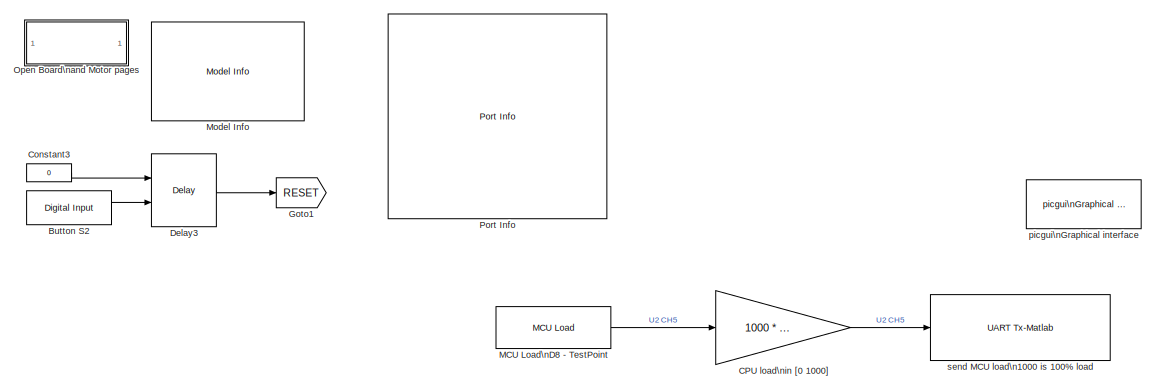
[diagram: root canvas - part 1/3, top right region]
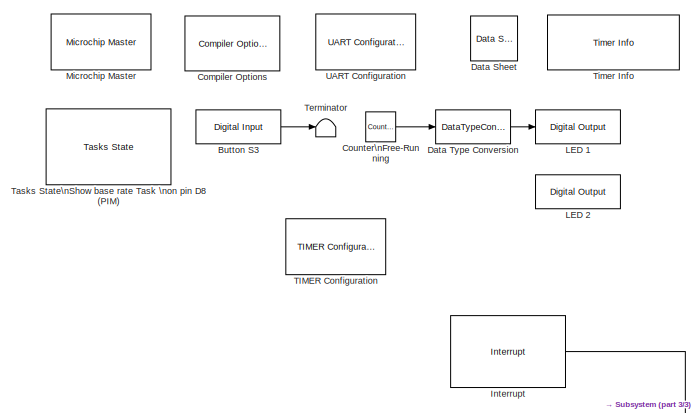
[diagram: root canvas - part 2/3, top left region]
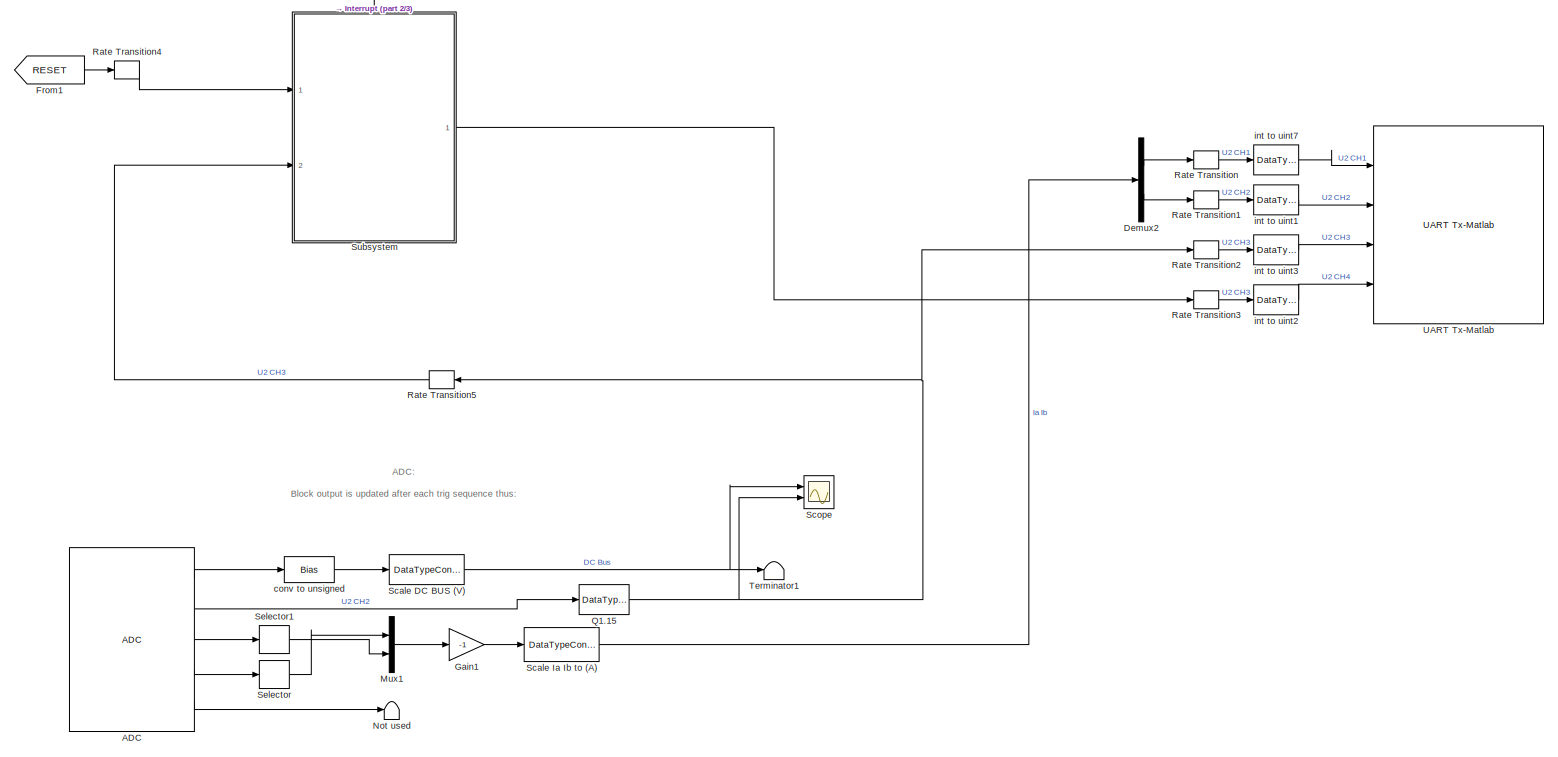
[diagram: root canvas - part 3/3, full width, bottom band]
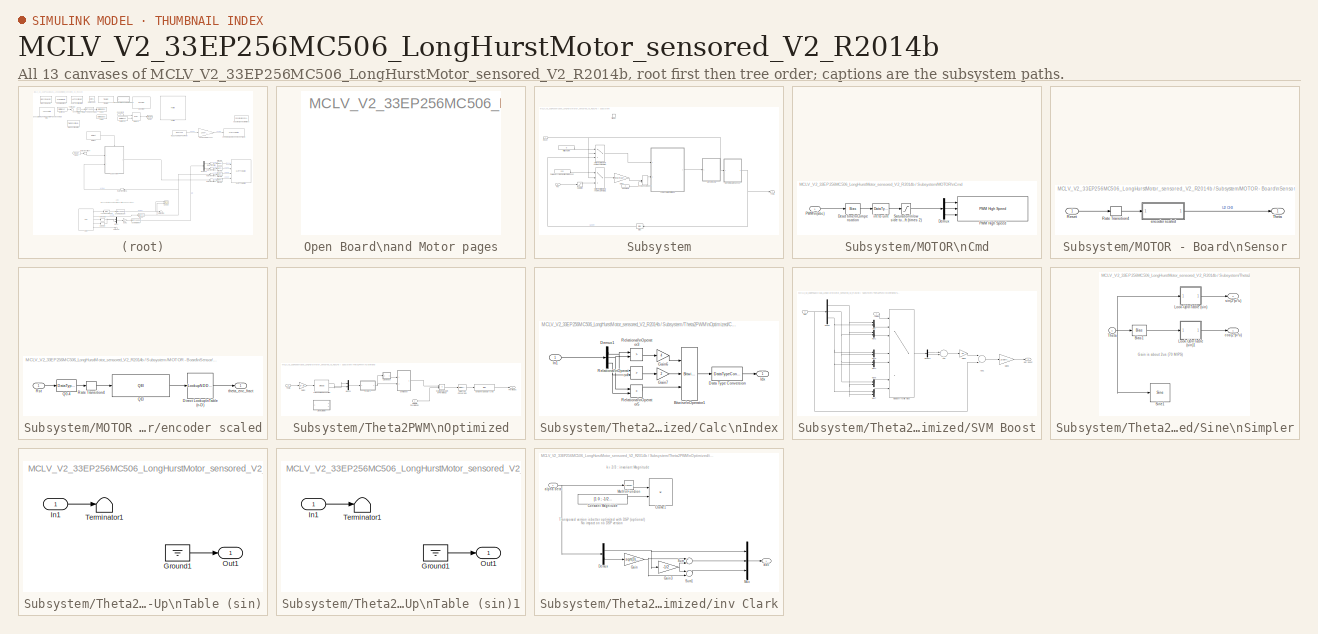
[diagram: thumbnail index - all 13 canvases of the model, root first then tree order]
MODEL MCLV_V2_33EP256MC506_LongHurstMotor_sensored_V2_R2014b
KIND model
BLOCK [Reference] ADC  REF=MCHP_Blockset/Analog IO/ADC
  ADC_DMA_CHANNEL = Use Interrupt instead of DMA
  ADC_R = < 5    kOhm
  ADC_REF = 1
  ADC_TIMING = [8.9142857142857144e-06]
  ADxCSS = [10 13]
  FORM = sddd dddd dddd 0000  ==> Signed fractional
  Info = Total Time for Sample & Conversion : 8.9143e-06s including 3.4286e-07s (x 2) sample time.
  MCHP_MASTERLINK = MCLV_V2_33EP256MC506_LongHurstMotor_sensored_V2_R2014b/Microchip Master
  MCHP_PORT = {Analog Input 0}{AN0}15:2:A0;{Analog Input 1}{AN1}15:2:A1;{Analog Input 2}{AN2}15:2:B0;{Analog Input 10}{AN10}15:2:A12;{Analog Input 13}{AN13}15:2:E13;
  MUXA_CH0N = off
  MUXA_CH123 = Dynamic Options
  MUXA_CH123_TXT = AN0 : AN1 : AN2
  MUXB_CH0 = AN1
  MUXB_CH0N = on
  MUXB_CH123 = Dynamic Options
  MUXB_CH123_TXT = AN0 : AN1 : AN2
  Mode = 10 bits (allows exact simultaneous sampling)
  Ports = [0, 5]
  Priority = 5
  SID = 1182
  SIMULTANEOUS = Simultaneously on all Channels
  SSRC_SSRCG = Dynamic Options
  SSRC_SSRCG_TXT = 6
  SampleTime = 0.01
  SequenceRepeat = 1
  SequenceTiming = are done as fast as possible ; triggered by user define source
  SourceBlock = MCHP_Blockset/Analog IO/ADC
  Trig_TimeStep = not synchronised with ADC [timer based...]
  Update_BlockOutput = After all trig and conversion sequence
  nSAMPLECHANNELS = CH0 : CH1 : CH2 : CH3
  nSAMPLECHANNELS_12bits = CH0 only
BLOCK [Reference] Button S2  REF=MCHP_Blockset/Digital IO/Digital Input
  MCHP_MASTERLINK = MCLV_V2_33EP256MC506_LongHurstMotor_sensored_V2_R2014b/Microchip Master
  MCHP_PORT = {Digital In}{DIN}2:0:G7;
  ORDERING = None
  PACK = off
  PIN = 7
  PORT = Dynamic Options
  PORT_TXT = G   [ 6 : 9 ]
  Ports = [0, 1]
  SID = 26
  SIMULTANEOUS = off
  SampleTime = -1
  SourceBlock = MCHP_Blockset/Digital IO/Digital Input
  SourceType = Input driver for Digital Input Pins
BLOCK [Reference] Button S3  REF=MCHP_Blockset/Digital IO/Digital Input
  MCHP_MASTERLINK = MCLV_V2_33EP256MC506_LongHurstMotor_sensored_V2_R2014b/Microchip Master
  MCHP_PORT = {Digital In}{DIN}2:0:G6;
  ORDERING = None
  PACK = off
  PIN = 6
  PORT = Dynamic Options
  PORT_TXT = G   [ 6 : 9 ]
  Ports = [0, 1]
  SID = 27
  SIMULTANEOUS = off
  SampleTime = .1
  SourceBlock = MCHP_Blockset/Digital IO/Digital Input
  SourceType = Input driver for Digital Input Pins
BLOCK [Gain] CPU load\nin [0 1000]
  Gain = 1000 * (914.3e-9 / .01 )
  OutDataTypeStr = uint16
  ParamDataTypeStr = Inherit: Inherit via internal rule
  SID = 521
  SaturateOnIntegerOverflow = off
BLOCK [Reference] Compiler Options  REF=MCHP_Blockset/System Configuration/Compiler Options
  AssemblyListing = off
  CMSIS_DSP = Dynamic Options
  CMSIS_DSP_TXT = Dynamic Options
  COMP_LIST = Dynamic Options
  COMP_LIST_TXT = xc16 - v1.70
  CodeReplacement = Dynamic Options
  CodeReplacement_TXT = None
  DEBUG_INFO = off
  DFP_LIST = Dynamic Options
  DFP_LIST_TXT = Dynamic Options
  HEAP_SIZE = 0
  LATEST_CMPLR = on
  MAGGREGATE = off
  MCHP_MASTERLINK = MCLV_V2_33EP256MC506_LongHurstMotor_sensored_V2_R2014b/Microchip Master
  MCHP_MULTITHREAD_COMPILATION = on
  MCODE = is less than 32768 (faster)
  MCONST = in data memory
  MDATA = Use only memory below address 8192 (faster)
  MLARGEARRAY = off
  MPLAB_LINKLIB = default
  MPLAB_LINKLIB1 = default
  MSCALAR = Use only memory below address 8192 (faster)
  NO_EDS_WARN = on
  OMF = elf
  OPTIMIZATION_FLTO = on
  OPTIMIZATION_LEVEL = 3
  OPTIMIZATION_REORDER = off
  PRINT_STATISTICS = off
  PROCEDURAL_ABSTRACTION = off
  Ports = []
  Priority = 1
  ProduceHexOutput = on
  SID = 2
  SaveTemps = off
  SourceBlock = MCHP_Blockset/System Configuration/Compiler Options
  UNROLL_LOOPS = on
  USE_64BIT_DOUBLE = off
  UseCustom_LinkerScript = off
BLOCK [Constant] Constant3
  OutDataTypeStr = uint16
  SID = 260
  SampleTime = -1
  Value = 0
BLOCK [Reference] Counter\nFree-Running  REF=simulink/Sources/Counter\nFree-Running
  NumBits = 1
  Ports = [0, 1]
  SID = 11
  SourceBlock = simulink/Sources/Counter\nFree-Running
  SourceType = Counter Free-Running
  tsamp = .1
BLOCK [Reference] Data Sheet  REF=MCHP_Blockset/System Info/Data Sheet
  AttributesFormatString = %<cpy_MCHP_Id>
  DOC_FileLastCheckTime = [2016              1             28             13             25         44.133]
  DOC_FilePath = <userpath><path>
  DOC_MCHP_Id = 33EP256MC506_datasheet
  DOC_Type = datasheet
  MCHP_MASTERLINK = MCLV_V2_33EP256MC506_LongHurstMotor_sensored_V2_R2014b/Microchip Master
  Ports = []
  SID = 7
  SourceBlock = MCHP_Blockset/System Info/Data Sheet
  cpy_MCHP_Id = 33EP256MC506
BLOCK [DataTypeConversion] Data Type Conversion
  OutDataTypeStr = boolean
  RndMeth = Floor
  SID = 13
  SaturateOnIntegerOverflow = off
BLOCK [Delay] Delay3
  DelayLength = 1
  ExternalReset = Falling
  InitialCondition = 1
  InputPortMap = u0,r5
  Ports = [2, 1]
  SID = 262
  SampleTime = .1
BLOCK [Demux] Demux2
  DisplayOption = bar
  Outputs = 2
  Ports = [1, 2]
  SID = 385
BLOCK [From] From1
  GotoTag = RESET
  SID = 360
  TagVisibility = global
BLOCK [Gain] Gain1
  Gain = -1
  ParamDataTypeStr = Inherit: Inherit via internal rule
  SID = 1184
BLOCK [Goto] Goto1
  GotoTag = RESET
  SID = 343
  TagVisibility = global
BLOCK [Reference] Interrupt  REF=MCHP_Blockset/System Functions/Interrupt
  FPUNoSave = on
  Info = 0
  IntPriority = 5
  IntPriority_Info = 5
  Interruption = Dynamic Options
  InterruptionLongDesc = TimerA
  Interruption_TXT = TimerA
  MCHP_MASTERLINK = MCLV_V2_33EP256MC506_LongHurstMotor_sensored_V2_R2014b/Microchip Master
  Ports = [0, 1]
  SID = 1242
  SS_ARCH = 16
  SS_ASYNCHRONOUS_INTERRUPT = 0
  SS_AsyncTaskPriority = 5
  SS_AsyncTimerRes = -1
  SS_TIMESOURCE = 1
  SourceBlock = MCHP_Blockset/System Functions/Interrupt
  SourceType = Interruption (Call Simulink Subfunction)
  StartupExecute = on
  Status = OK
  TIMER_Resolution = Dynamic Options
  TIMER_Resolution_TXT = Resol: 0.01429(us)  -  MaxPer: 0.936(ms)
  Triggered_Sub_TimeSource = is derived from model base rate
  TrigsPeriod = 0
BLOCK [Reference] LED 1  REF=MCHP_Blockset/Digital IO/Digital Output
  MCHP_MASTERLINK = MCLV_V2_33EP256MC506_LongHurstMotor_sensored_V2_R2014b/Microchip Master
  ORDERING = None
  PACK = off
  PIN = 6
  PORT = Dynamic Options
  PORT_TXT = D   [ 5  6  8 ]
  Ports = [1]
  READPREVIOUS = off
  SID = 9
  SIMULTANEOUS = off
  SampleTime = -1
  SourceBlock = MCHP_Blockset/Digital IO/Digital Output
BLOCK [Reference] LED 2  REF=MCHP_Blockset/Digital IO/Digital Output
  Commented = on
  MCHP_MASTERLINK = MCLV_V2_33EP256MC506_LongHurstMotor_sensored_V2_R2014b/Microchip Master
  ORDERING = None
  PACK = off
  PIN = 5
  PORT = Dynamic Options
  PORT_TXT = D   [ 5  6  8 ]
  Ports = [1]
  READPREVIOUS = off
  SID = 10
  SIMULTANEOUS = off
  SampleTime = -1
  SourceBlock = MCHP_Blockset/Digital IO/Digital Output
BLOCK [Reference] MCU Load\nD8 - TestPoint  REF=MCHP_Blockset/Profiling/MCU Load
  Info = Timer 3:  Resol: 914.2857143(ns)  -  Max: 59.9186(ms)
  MCHP_COMPILED_INFO = CompiledSampleTime= [0.01   0 ];CompiledInportDataTypes=[ ];CompiledInportDataWidth=[];
  MCHP_MASTERLINK = MCLV_V2_33EP256MC506_LongHurstMotor_sensored_V2_R2014b/Microchip Master
  MCHP_PORT = {MCU Load Pin}{MCU_Load}0:1:D5;
  MCHP_TIMER_REQUEST = {MCU_Load}{MCU_Load}21:5:0:0:[]:4194304;
  MCHP_TIMER_RESULT = [3 65535 ]
  MCULoadMeasure = on
  MCULoadPin = Dynamic Options
  MCULoadPin_TXT = D5 / Pin[53]
  Ports = [0, 1]
  SID = 210
  SampleTime = .01
  SourceBlock = MCHP_Blockset/Profiling/MCU Load
  SourceType = MCU Load (Profile execution time)
  TIMER_Resolution = Dynamic Options
  TIMER_Resolution_TXT = Resol: 0.9143(us)  -  Max: 59.9(ms)
BLOCK [Reference] Microchip Master  REF=MCHP_Blockset/System Configuration/Microchip Master
  ACLKCON = Optimized for PWM resolution & ADC conversion speed
  ACLKCON_spd = Optimized for PWM resolution & ADC conversion speed
  ACTIV_PLL = on
  ACTIV_PLL_spd = on
  AIVTDIS = Disable Alternate Vector Table
  ALTADREF = Not used
  ALTCMPI = Not used
  ALTCVREF = Not used
  ALTI2C = I2C mapped to SDA1/SCL1 pins
  ALTI2C1 = I2C1 mapped to SDA1/SCL1 pins
  ALTI2C2 = I2C2 mapped to SDA2/SCL2 pins
  ALTI2C3 = I2C3 mapped to SDA3/SCL3 pins
  ALTPMP = Not used
  ALTQIO = QEA1; QEB1; INDX1 are selected as inputs to QEI1
  ALTRB6 = Not used
  ALTSS1 = SS1A is selected as the I/O pin for SPI1
  ALTVREF = Not used
  APL = Aux Flash Code protect is disabled
  APLK = Aux Flash Write Protection or Code Protection is Enabled
  ATMOD8 = Not used
  AWRP = Auxiliary program memory is not write-protected
  BACKBUG = Not used
  BISTDIS = mBIST on reset feature disabled
  BKBUG = Not used
  BODENV = 2.7V
  BOOTISA = Boot code and Exception code is MIPS32
  BOREN = Disable
  BOREN0 = Enabled
  BOREN1 = Not used
  BORLVL = Not used
  BORSEL = BOR trip voltage 2.1v (Non-OPAMP deviced operation)
  BORV = Not used
  BSEN = No Boot Segment
  BSEQ = Not used
  BSLIM = Not used
  BSS = No Boot program Flash segment
  BSS2 = No Boot Segment
  BSSO = Not used
  BTMODE = Not used
  BTSWP = BOOTSWP instruction is disabled
  BUSYFLAG = Dynamic Options
  BUSYFLAG_TXT = D8 / Pin[42]
  BWP = Not used
  BWRP = Boot Segment may be written
  CFGAN14 = Not used
  CFGAN15 = Not used
  CMPPOL0 = Hysteresis is applied to falling edge
  CMPPOL1 = Hysteresis is applied to falling edge
  COE = Not used
  CP = Protection Disabled
  CPRA0 = Master core owns pin
  CPRA1 = Master core owns pin
  CPRA2 = Master core owns pin
  CPRA3 = Master core owns pin
  CPRA4 = Master core owns pin
  CPRB0 = Master core owns pin
  CPRB1 = Master core owns pin
  CPRB10 = Master core owns pin
  CPRB11 = Master core owns pin
  CPRB12 = Master core owns pin
  CPRB13 = Master core owns pin
  CPRB14 = Master core owns pin
  CPRB15 = Master core owns pin
  CPRB2 = Master core owns pin
  CPRB3 = Master core owns pin
  CPRB4 = Master core owns pin
  CPRB5 = Master core owns pin
  CPRB6 = Master core owns pin
  CPRB7 = Master core owns pin
  CPRB8 = Master core owns pin
  CPRB9 = Master core owns pin
  CPRC0 = Master core owns pin
  CPRC1 = Master core owns pin
  CPRC10 = Master core owns pin
  CPRC11 = Master core owns pin
  CPRC12 = Master core owns pin
  CPRC13 = Master core owns pin
  CPRC14 = Master core owns pin
  CPRC15 = Master core owns pin
  CPRC2 = Master core owns pin
  CPRC3 = Master core owns pin
  CPRC4 = Master core owns pin
  CPRC5 = Master core owns pin
  CPRC6 = Master core owns pin
  CPRC7 = Master core owns pin
  CPRC8 = Master core owns pin
  CPRC9 = Master core owns pin
  CPRD0 = Master core owns pin
  CPRD1 = Master core owns pin
  CPRD10 = Master core owns pin
  CPRD11 = Master core owns pin
  CPRD12 = Master core owns pin
  CPRD13 = Master core owns pin
  CPRD14 = Master core owns pin
  CPRD15 = Master core owns pin
  CPRD2 = Master core owns pin
  CPRD3 = Master core owns pin
  CPRD4 = Master core owns pin
  CPRD5 = Master core owns pin
  CPRD6 = Master core owns pin
  CPRD7 = Master core owns pin
  CPRD8 = Master core owns pin
  CPRD9 = Master core owns pin
  CPRE0 = Master core owns pin
  CPRE1 = Master core owns pin
  CPRE10 = Master core owns pin
  CPRE11 = Master core owns pin
  CPRE12 = Master core owns pin
  CPRE13 = Master core owns pin
  CPRE14 = Master core owns pin
  CPRE15 = Master core owns pin
  CPRE2 = Master core owns pin
  CPRE3 = Master core owns pin
  CPRE4 = Master core owns pin
  CPRE5 = Master core owns pin
  CPRE6 = Master core owns pin
  CPRE7 = Master core owns pin
  CPRE8 = Master core owns pin
  CPRE9 = Master core owns pin
  CPUDIV = Divide by 1
  CSEQ = Not used
  CSS = No Protection (other than CWRP)
  CTXT1 = Not Assigned
  CTXT2 = Not Assigned
  CTXT3 = Not Assigned
  CTXT4 = Not Assigned
  CWRP = Configuration Segment may be written
  DBCC = No Cross Connection between DAC outputs
  DBGPER = Allow CPU access to all permission regions
  DEBUG = Debugger is disabled
  DFMCY = Not used
  DISUVREG = Not used
  DMTCNT = 2^31 (2147483648)
  DMTCNTH = Not used
  DMTCNTL = Not used
  DMTDIS = Dead Man Timer is Disabled and can be enabled by software
  DMTEN = Dead Man Timer is Disabled and can be enabled by software
  DMTINTV = Window/Interval value is 127/128 counter value
  DMTIVT = Not used
  DMTIVTH = Not used
  DMTIVTL = Not used
  DSBOREN = Enable ZPBOR during Deep Sleep Mode
  DSLPBOR = Not used
  DSSWEN = Not used
  DSWDTEN = Enable DSWDT during Deep Sleep Mode
  DSWDTOSC = Select LPRC as DSWDT Reference clock
  DSWDTPS = 1:2^36
  EBS = No Boot EEPROM
  EJTAGBEN = Normal EJTAG functionality
  ESS = No Segment Data EEPROM
  EXTDDRSIZE = Not used
  FCANIO = Not used
  FCKSM = Both Clock switching and Fail-safe Clock Monitor are enabled
  FCKSMEN = Sw Disabled; Mon Disabled
  FDBGWP = Not used
  FDMTEN = Deadman Timer is disabled
  FDSEN = Enable DSEN bit in DSCON
  FECCCON = ECC and Dynamic ECC are disabled (ECCCON bits are writable)
  FETHIO = Default Ethernet I/O
  FMIIEN = MII Enabled
  FNOSC = Primary Oscillator (XT; HS; EC)
  FOS = Primary Oscillator
  FOSFPR = HS3 w/PLL 16x
  FPBDIV = Not used
  FPLLICLK = FRC is input to the System PLL
  FPLLIDIV = 8x Divider
  FPLLMUL = Not used
  FPLLMULT = PLL Multiply by 128
  FPLLODIV = 32x Divider
  FPLLRNG = 34-68 MHz Input
  FPR = ECIO w/ PLL 16x
  FPWRT = 128ms
  FRANGE = High Range
  FSLEEP = Flash is powered down when the device is in Sleep mode
  FSOSCEN = Disable Secondary Oscillator
  FSRSSEL = Not used
  FUSBIDIO = Controlled by the USB Module
  FUSBIDIO1 = USBID pin is controlled by the USB1 module
  FUSBIDIO2 = USBID pin is controlled by the USB2 module
  FVBUSIO1 = VBUSON pin is controlled by the USB1 module
  FVBUSIO2 = VBUSON pin is controlled by the USB2 module
  FVBUSONIO = Not used
  FWDTEN = Disable
  FWDTWINSZ = Window size is 25%
  FWPSA = 1:512
  FWPSA0 = 1:128
  FWPSB = 1:16
  GCP = General Segment Code protect is Disabled
  GSS = General Segment Code protect is Disabled
  GSS0 = Not used
  GSSK = General Segment Write Protection or Code Protection is Enabled
  GWRP = General Segment may be written
  HPOL = PWM module high side output pins have active-high output polarity
  HSAEN = Mailbox data flow control handshake protocol block disabled
  HSBEN = Mailbox data flow control handshake protocol block disabled
  HSCEN = Mailbox data flow control handshake protocol block disabled
  HSDEN = Mailbox data flow control handshake protocol block disabled
  HSEEN = Mailbox data flow control handshake protocol block disabled
  HSFEN = Mailbox data flow control handshake protocol block disabled
  HSGEN = Mailbox data flow control handshake protocol block disabled
  HSHEN = Mailbox data flow control handshake protocol block disabled
  HYST0 = 45 mV Hysteresis
  HYST1 = 45 mV Hysteresis
  I2C1SEL = Not used
  I2C2SEL = Not used
  IBSEQ = Not used
  ICESEL = Communicate on PGEC1/PGED1
  ICS = Communicate on PGEC2 and PGED2
  IESO = Start up with FRC; then switch
  INT_PRIORITY_DMA = 0
  IOL1WAY = Allow only one reconfiguration
  JTAGEN = Disable
  LPCFG = Not used
  LPOL = PWM module low side output pins have active-high output polarity
  LPRCSEL = Not used
  LVRCFG = Not used
  MAXTEMP = Not used
  MBXHSA = MSIxMBXD15 assigned to mailbox handshake protocol block A
  MBXHSB = MSIxMBXD15 assigned to mailbox handshake protocol block B
  MBXHSC = MSIxMBXD15 assigned to mailbox handshake protocol block C
  MBXHSD = MSIxMBXD15 assigned to mailbox handshake protocol block D
  MBXHSE = MSIxMBXD15 assigned to mailbox handshake protocol block E
  MBXHSF = MSIxMBXD15 assigned to mailbox handshake protocol block F
  MBXHSG = MSIxMBXD15 assigned to mailbox handshake protocol block G
  MBXHSH = MSIxMBXD15 assigned to mailbox handshake protocol block H
  MBXM0 = Mailbox register configured for Master data read (Slave to Master data transfer)
  MBXM1 = Mailbox register configured for Master data read (Slave to Master data transfer)
  MBXM10 = Mailbox register configured for Master data read (Slave to Master data transfer)
  MBXM11 = Mailbox register configured for Master data read (Slave to Master data transfer)
  MBXM12 = Mailbox register configured for Master data read (Slave to Master data transfer)
  MBXM13 = Mailbox register configured for Master data read (Slave to Master data transfer)
  MBXM14 = Mailbox register configured for Master data read (Slave to Master data transfer)
  MBXM15 = Mailbox register configured for Master data read (Slave to Master data transfer)
  MBXM2 = Mailbox register configured for Master data read (Slave to Master data transfer)
  MBXM3 = Mailbox register configured for Master data read (Slave to Master data transfer)
  MBXM4 = Mailbox register configured for Master data read (Slave to Master data transfer)
  MBXM5 = Mailbox register configured for Master data read (Slave to Master data transfer)
  MBXM6 = Mailbox register configured for Master data read (Slave to Master data transfer)
  MBXM7 = Mailbox register configured for Master data read (Slave to Master data transfer)
  MBXM8 = Mailbox register configured for Master data read (Slave to Master data transfer)
  MBXM9 = Mailbox register configured for Master data read (Slave to Master data transfer)
  MCA = Not used
  MCHPVAR = MCHP.fcy.MIPS=70000000;MCHP.fcy.SYSCLK=70000000;MCHP.fcy.ADC=70000000;MCHP.fcy.Comparator=70000000;MCHP.fcy.I2C=70000000;MCHP.fcy.SPI=70000000;MCHP.fcy.UART=70000000;MCHP.fcy.Timers=70000000;MCHP.fcy.OC=70000000;MCHP.fcy.IC=70000000;MCHP.fcy.Ports=70000000;MCHP.fcy.QEI=70000000;MCHP.PowerSave=0;MCHP.TimeStepFactor=MCHP_Fun.Hex2num('3FEFFFA0215469B2');MCHP.TimeStep_Timer=1;MCHP.NTIMERS=5;MCHP.id.na...<+13879ch>
  MCHP_CRC = 15577435
  MCHP_PLLRegisters = [5    243  16385     -1     -1]
  MCHP_PORT = {Busy Flag}{Busy}0:1:D8;
  MCHP_TIMER_REQUEST = {Time Step}{TS}0:2:3:1:[]:700000;
  MCHP_TIMER_RESULT = [1 10936.499999999987 ]
  MCLRE = Enabled
  MIPS = 70 * 1e6
  MIPS_DESIRED = 70e6
  MIPS_DESIRED_spd = 70e6
  NOBTSWP = BOOTSWP instruction is disabled
  ON = Not used
  OSCILLATOR_SELECT = Crystal / Ceramic resonator
  OSCILLATOR_SELECT_spd = Crystal / Ceramic resonator
  OSCIOFCN = Not used
  OSCIOFNC = general purpose digital I/O pin
  PGL1WAY = Allow only one reconfiguration
  PICREF = 33EP256MC506
  PLL96MHZ = Not used
  PLLDIV = Not used
  PLLKEN = Clock switch to PLL source will wait until the PLL lock signal is valid
  PLLSS = Not used
  PLL_96MHZ = Not used
  PMDL1WAY = Allow only one reconfiguration
  POSCAGC = Automatic Gain Control for Oscillator
  POSCAGCDLY = Settling time = 25ms x AGCRNG
  POSCAGCRNG = Range 1x
  POSCBOOST = Boost the kick start of the oscillator
  POSCFGAIN = Gain is G3
  POSCFREQ = Not used
  POSCGAIN = 2x gain setting
  POSCMD = XT Crystal Oscillator Mode
  POSCMOD = Primary Oscillator Disabled
  POWERSAVE = off
  PWMLOCK = PWM registers may be written without key sequence
  PWMPIN = PWM module pins controlled by PORT register at device Reset
  PWP = Not used
  PWRTEN = Not used
  Ports = []
  Priority = 1
  QUARTZ = 8e6
  QUARTZ_spd = 8e6
  RBS = No Boot RAM
  RCLKSEL = Always use LPRC
  RES = Not used
  RES1 = Not used
  RES2 = Not used
  RESERVED1 = Not used
  RETCFG = Not used
  RSS = No Secure RAM
  RSTPRI = Device will obtain reset instruction from Primary flash
  RTCBAT = Not used
  RTCOSC = Not used
  RWDTPS = 1:1048576
  S1ALTI2C1 = I2C1 mapped to SDA1/SCL1 pins
  S1BACKBUG = Not used
  S1BISTDIS = Slave BIST on reset feature disabled
  S1BSSO = Not used
  S1CTXT1 = Not Assigned
  S1CTXT2 = Not Assigned
  S1CTXT3 = Not Assigned
  S1CTXT4 = Not Assigned
  S1DEBUG = Not used
  S1DMTCNTH = Not used
  S1DMTCNTL = Not used
  S1DMTDIS = Slave Dead Man Timer is Disabled and can be enabled by software
  S1DMTIVTH = Not used
  S1DMTIVTL = Not used
  S1FCKSM = Both Clock switching and Fail-safe Clock Monitor are disabled
  S1FNOSC = Internal Fast RC (FRC) Oscillator with postscaler
  S1FWDTEN = Enable
  S1ICS = Communicate on PGC1 and PGD1
  S1IESO = Start up with FRC; then switch
  S1IOL1WAY = Not used
  S1ISOLAT = The slave can operate (in debug mode) even if the SLVEN bit in the MSI is zero
  S1MSRE = The master software oriented RESET events (RESET Op-Code; Watchdog timeout; TRAP reset; illegalInstruction) will also cause the slave subsystem to reset
  S1NOBTSWP = BOOTSWP instruction is disabled
  S1OSCIOFNC = OSC2 is clock output
  S1PLLKEN = S1PLLKEN_ON
  S1RCLKSEL = Always use LPRC
  S1RWDTPS = 1:1048576
  S1SPI1PIN = Slave SPI1 uses I/O remap (PPS) pins
  S1SSRE = Slave generated resets will reset the Slave Enable Bit in the MSI module
  S1SWDTPS = 1:1048576
  S1WDTWIN = WDT Window is 25% of WDT period
  S1WINDIS = Watchdog Timer operates in Non-Window mode
  SEQNUM = Not used
  SID = 1
  SMB3EN = SMBus 3.0 input levels
  SMBEN = SMBus input threshold is enabled
  SMCLR = MCLR pin generates a normal system Reset
  SOSCBOOST = Boost the kick start of the oscillator
  SOSCGAIN = 2x gain setting
  SOSCSEL = Not used
  SOSCSRC = Not used
  SPI2PIN = SPI2 uses I/O remap (PPS) pins
  SSS = No Secure Segment
  SWDTPS = 1:1048576
  SWRP = Secure segment may be written
  SourceBlock = MCHP_Blockset/System Configuration/Microchip Master
  TEMP = Not used
  TIMESTEP_REF = Timer  ( 0.01s + [-0.0045714%] ==> 0.0099995s )
  TRCEN = Trace features in the CPU are enabled
  TSEQ = Not used
  UPLLEN = USB PLL Disabled
  UPLLFSEL = USB PLL input is 24 MHz
  UPLLIDIV = Not used
  USERID = Not used
  VBATBOREN = Enable ZPBOR during VBAT Mode
  VBTBOR = Not used
  VDD_range = Dynamic Options
  WDT = Disable
  WDTCLK = Not used
  WDTCMX = Not used
  WDTEN = Disable
  WDTPOST = 1:32768
  WDTPRE = 1:128
  WDTPS = 1:32768
  WDTSPGM = WDT stops during Flash programming
  WDTWIN = WDT Window is 25% of WDT period
  WINDIS = Watchdog Timer in Non-Window mode
  WPCFG = Not used
  WPDIS = Not used
  WPEND = Not used
  WPFP = Not used
  WUTSEL = Not used
  WWDTEN = Non-Window mode
  XTBST = Boost the kick-start
  XTCFG = 24-32 MHz crystals
  nSEQNUM = Not used
BLOCK [Reference] Model Info  REF=simulink/Model-Wide\nUtilities/Model Info
  DisplayStringWithTags = Long hust motor with:\nM1 - Black\nM2 - Red\nM3 - White\n\nEncoder on HA - HB \nHA: Blue wire\nHB: White wire
  Frame = on
  HorizontalTextAlignment = Left
  LeftAlignmentValue = 0.02
  MaskDisplayString = Long hust motor with:\\nM1 - Black\\nM2 - Red\\nM3 - White\\n\\nEncoder on HA - HB \\nHA: Blue wire\\nHB: White wire
  Ports = []
  SID = 398
  SourceBlock = simulink/Model-Wide\nUtilities/Model Info
  SourceBlockDiagram = MCLV_V2_33EP256MC506_LongHurstMotor_sensored_V2_R2014b
  SourceType = CMBlock
  TagMaxNumber = 20
BLOCK [Mux] Mux1
  DisplayOption = bar
  Inputs = 2
  Ports = [2, 1]
  SID = 1185
BLOCK [Terminator] Not used
  SID = 1191
BLOCK [SubSystem] Open Board\nand Motor pages
  OpenFcn = web('www.microchip.com/DevelopmentTools/ProductDetails.aspx?PartNO=DM330021-2','-browser');\npause(1);\nweb('http://www.microchipdirect.com/productsearch.aspx?keywords=AC300020','-browser');\npause(1);\nweb('www.microchipdirect.com/ProductSearch.aspx?keywords=AC300022','-browser');\n
  Ports = []
  RequestExecContextInheritance = off
  SID = 527
BLOCK [Reference] Port Info  REF=MCHP_Blockset/System Info/Port Info
  MCHP_MASTERLINK = MCLV_V2_33EP256MC506_LongHurstMotor_sensored_V2_R2014b/Microchip Master
  Ports = []
  SID = 5
  SourceBlock = MCHP_Blockset/System Info/Port Info
BLOCK [DataTypeConversion] Q1.15
  ConvertRealWorld = Stored Integer (SI)
  OutDataTypeStr = fixdt(1,16,15)
  RndMeth = Floor
  SID = 1187
  SaturateOnIntegerOverflow = off
BLOCK [RateTransition] Rate Transition
  SID = 22
BLOCK [RateTransition] Rate Transition1
  SID = 23
BLOCK [RateTransition] Rate Transition2
  SID = 338
BLOCK [RateTransition] Rate Transition3
  Deterministic = off
  SID = 1234
BLOCK [RateTransition] Rate Transition4
  Deterministic = off
  SID = 1227
BLOCK [RateTransition] Rate Transition5
  Deterministic = off
  SID = 1268
BLOCK [DataTypeConversion] Scale DC BUS  (V)
  ConvertRealWorld = Stored Integer (SI)
  OutDataTypeStr = fixdt(0,16, (3.3*16)/65535 ,0)
  RndMeth = Floor
  SID = 1189
  SaturateOnIntegerOverflow = off
BLOCK [DataTypeConversion] Scale Ia Ib to (A)
  ConvertRealWorld = Stored Integer (SI)
  OutDataTypeStr = fixdt(1,16, 1.65/32768 / (.005 * 75),0)
  RndMeth = Floor
  SID = 1190
  SaturateOnIntegerOverflow = off
BLOCK [Scope] Scope
  DataFormat = StructureWithTime
  Floating = off
  LimitDataPoints = off
  NumInputPorts = 2
  Ports = [2]
  SID = 1273
  ShowLegends = off
  YMax = 10~5
  YMin = -10~-5
BLOCK [Selector] Selector
  Indices = 2
  InputPortWidth = 2
  Ports = [1, 1]
  SID = 1239
BLOCK [Selector] Selector1
  Indices = 2
  InputPortWidth = 2
  Ports = [1, 1]
  SID = 1240
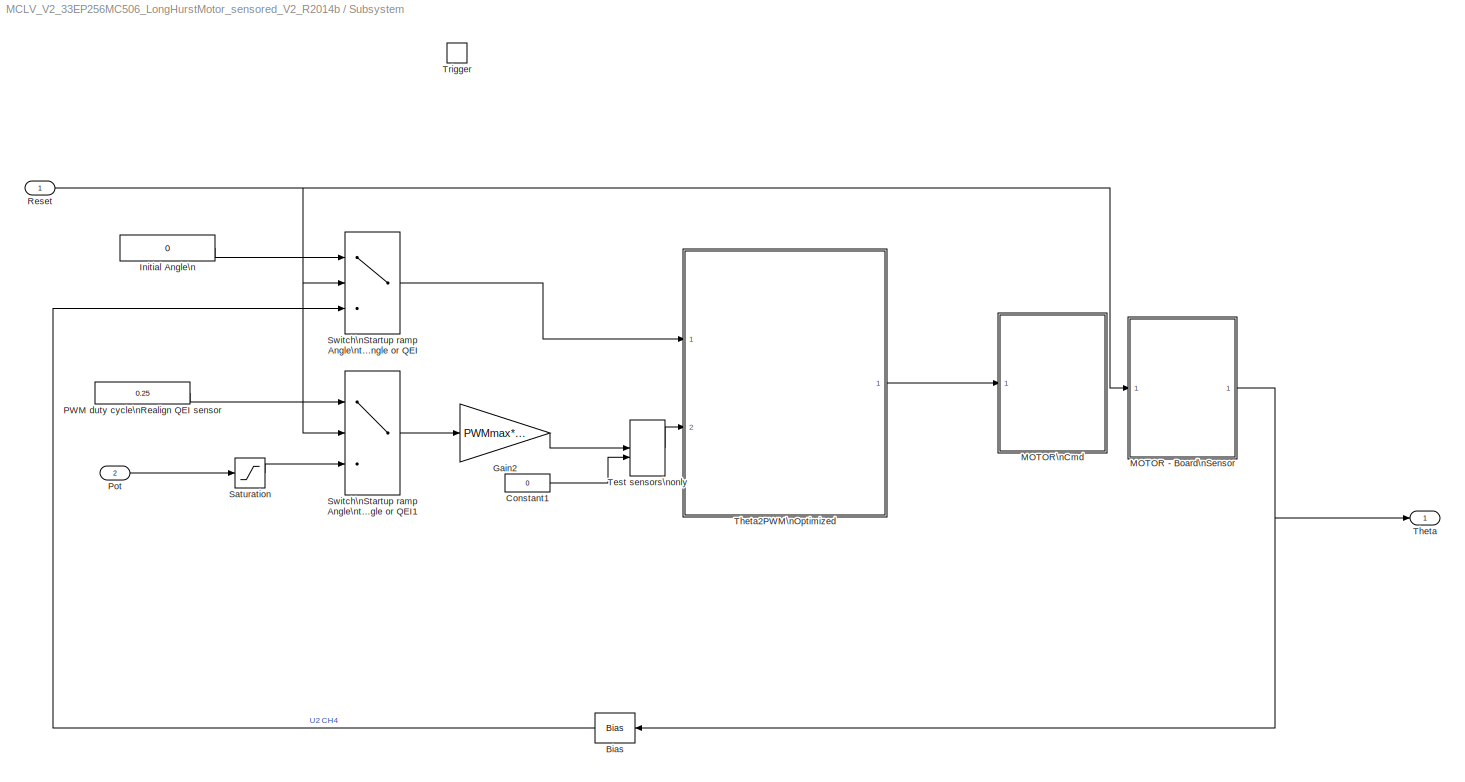
BLOCK [SubSystem] Subsystem
  Ports = [2, 1, 0, 1]
  RequestExecContextInheritance = off
  SID = 1243
BLOCK [Bias] Subsystem/Bias
  Bias = 0.25
  SID = 390
  SaturateOnIntegerOverflow = off
BLOCK [Constant] Subsystem/Constant1
  OutDataTypeStr = Inherit: Inherit via back propagation
  SID = 1232
  SampleTime = -1
  Value = 0
BLOCK [Gain] Subsystem/Gain2
  Gain = PWMmax*0.5
  OutDataTypeStr = fixdt(1,16)
  OutMax = PWMmax*0.5
  OutMin = -PWMmax*0.5
  ParamDataTypeStr = Inherit: Inherit via internal rule
  SID = 379
  SaturateOnIntegerOverflow = off
BLOCK [Constant] Subsystem/Initial Angle\n
  OutDataTypeStr = Inherit: Inherit via back propagation
  SID = 1228
  Value = 0
BLOCK [SubSystem] Subsystem/MOTOR - Board\nSensor
  Ports = [1, 1]
  RequestExecContextInheritance = off
  SID = 1180
BLOCK [RateTransition] Subsystem/MOTOR - Board\nSensor/Rate Transition4
  SID = 1188
  X0 = 1
BLOCK [Inport] Subsystem/MOTOR - Board\nSensor/Reset
  IconDisplay = Port number
  SID = 1253
BLOCK [Outport] Subsystem/MOTOR - Board\nSensor/Theta
  IconDisplay = Port number
  SID = 1203
BLOCK [SubSystem] Subsystem/MOTOR - Board\nSensor/encoder scaled
  Ports = [1, 1]
  RequestExecContextInheritance = off
  SID = 1194
BLOCK [LookupNDDirect] Subsystem/MOTOR - Board\nSensor/encoder scaled/Direct Lookup\nTable (n-D)
  LockScale = on
  NumberOfTableDimensions = 1
  Ports = [1, 1]
  SID = 1196
  Table = [0:199]*inv(200)
  TableDataTypeStr = fixdt(0,16,16)
BLOCK [DataTypeConversion] Subsystem/MOTOR - Board\nSensor/encoder scaled/Q0.4
  RndMeth = Floor
  SID = 1197
  SaturateOnIntegerOverflow = off
BLOCK [Reference] Subsystem/MOTOR - Board\nSensor/encoder scaled/QEI  REF=MCHP_Blockset/QEI/QEI
  FILTER_CutOffFreq = 100e3
  FILTREN = on
  HOMPOL = on
  IDXPOL = off
  IMV = QEA = 1 and QEB = 0
  IMV_x2 = QEA = 1
  INDXxCNT_Output = is not an output
  INTxHLD_Output = is not an output
  MCHP_MASTERLINK = MCLV_V2_33EP256MC506_LongHurstMotor_sensored_V2_R2014b/Microchip Master
  MCHP_PORT = {QEI1 A}{QEIA1}5:0:P54;{QEI1 B}{QEIB1}5:0:P24;
  MaxPeriod = 0.1
  PCIIRQ = off
  PIMOD_mode = position is cyclique between user defined boundaries
  PIMOD_modeB = Never reset position
  PIMOD_reset = on next INDEX event
  PIN_CCMP = Dynamic Options
  PIN_CCMP_TXT = A4 / P20 / Pin[33]
  PIN_HOME = Dynamic Options
  PIN_HOME_TXT = B9 / P41 / Pin[49]
  PIN_INDEX = Dynamic Options
  PIN_INDEX_TXT = B15 / P47 / Pin[3]
  PIN_QEA = Dynamic Options
  PIN_QEA_TXT = C6 / P54 / Pin[50]
  PIN_QEB = Dynamic Options
  PIN_QEB_TXT = A8 / P24 / Pin[31]
  POSxCNT_Output = is a 16 bits unsigned block output
  Ports = [1, 1]
  QEAPOL = off
  QEBPOL = off
  QEI_IntPri = 5
  QEI_MODE = Quadrature Encoder
  QEI_PulseCountDir = Down
  QEI_REF = 1
  QEI_x2mode = off
  QEIxIC = 0
  QEIxLEC_GEC = [0 199]
  QFDIV_popup = Dynamic Options
  QFDIV_popup_TXT = 364.58 kHz
  RESET_Input = on
  SID = 1198
  SWPAB = on
  SampleTime = -1
  SourceBlock = MCHP_Blockset/QEI/QEI
  SourceType = Output Driver for Quadrature Encoder Interface (QEI) peripheral
  UserData = DataTag1
  UserDataPersistent = on
  VELxCNT_Output = is not an output
  evalin_ws = ''
BLOCK [RateTransition] Subsystem/MOTOR - Board\nSensor/encoder scaled/Rate Transition4
  SID = 1199
  X0 = 1
BLOCK [Inport] Subsystem/MOTOR - Board\nSensor/encoder scaled/Rst
  IconDisplay = Port number
  SID = 1195
BLOCK [Outport] Subsystem/MOTOR - Board\nSensor/encoder scaled/theta_enc_fract
  IconDisplay = Port number
  SID = 1200
BLOCK [SubSystem] Subsystem/MOTOR\nCmd
  Ports = [1]
  RequestExecContextInheritance = off
  SID = 1171
BLOCK [Bias] Subsystem/MOTOR\nCmd/Dead time\nCompensation
  Bias = round( (2e-6/5e-5) *PWMmax )
  SID = 1174
  SaturateOnIntegerOverflow = off
BLOCK [Demux] Subsystem/MOTOR\nCmd/Demux
  DisplayOption = bar
  Outputs = 3
  Ports = [1, 3]
  SID = 1175
BLOCK [Reference] Subsystem/MOTOR\nCmd/PWM High Speed  REF=MCHP_Blockset/PWM IO/PWM High Speed
  ADC_VARTRIG = {PWM Primary Special Event Trigger;6}
  ChkCurBlkOut = [1  0  0  0  0  0  0  0]
  ChkCurBlkOutTime = [1  0  1  0  0  0  0  0]
  InitDC = { '4','4','4','50','50','50','50','50';'0.001','0.001','0.001','50','50','50','50','50'}
  InitP2 = { '5e-05','5e-05','5e-05','0.001','0.001','0.001','0.001','0.001';'0.001','0.001','0.001','0.001','0.001','0.001','0.001','0.001'}
  InitPh = { '0','0','0','0.001','0.001','0.001','0.001','0.001';'0','0','0','0.001','0.001','0.001','0.001','0.001'}
  MCHP_MASTERLINK = MCLV_V2_33EP256MC506_LongHurstMotor_sensored_V2_R2014b/Microchip Master
  MCHP_PORT = {PWM1 Fault}{FLT32}4:0:B4;{PWM2 Fault}{FLT32}4:0:B4;{PWM3 Fault}{FLT32}4:0:B4;{PWM1H}{PWM1H}4:4:B14;{PWM1L}{PWM1L}4:4:B15;{PWM2H}{PWM2H}4:4:B12;{PWM2L}{PWM2L}4:4:B13;{PWM3H}{PWM3H}4:4:B10;{PWM3L}{PWM3L}4:4:B11;
  MCHP_VERSION = v3.38
  ORDERING = None
  Parameter50 = 0
  Ports = [3]
  SID = 1176
  S_DWORK_Size = []
  S_DWORK_Type = []
  S_INPUT = [5  5  5]
  S_INPUT_Size = [1  1  1]
  S_OUTPUT = []
  S_OUTPUT_Size = []
  SampleTime = -1
  SourceBlock = MCHP_Blockset/PWM IO/PWM High Speed
  UserData = DataTag0
  UserDataPersistent = on
  chk1 = [1  1  1  0  0]
  chkDC = [1  1  1  1  1  1  1  1 ; 0  0  0  1  1  1  1  1]
  chkFltBlkOut = [0  0  0  0  0  0  0  0]
  chkHL1 = [1  1  1  1  1  1  1  1 ; 1  1  1  1  1  1  1  1]
  chkP2 = [0  0  0  1  1  1  1  1 ; 1  0  0  1  1  1  1  1]
  chkPh = [0  0  0  1  1  1  1  1 ; 0  0  0  1  1  1  1  1]
  chkSEvTrigx = [0  0  0  1  1  1  1  1]
  edAltDTRx = { '2e-06','2e-06','2e-06','1e-05','1e-05','1e-05','1e-05','1e-05'}
  edDTRx = { '0','0','0','1e-05','1e-05','1e-05','1e-05','1e-05'}
  edLEB = { '100e-9','50e-9','150e-9','50e-9','50e-9','50e-9','50e-9','50e-9'}
  edSEvTrigx = { '0','-1','-1','-1','-1','-1','-1','-1'}
  evalin_ws = PWMmax = 3499;PWM1max = 3499;PWM2max = 3499;PWM3max = 3499;
  maxP1 = { '5e-05','5e-05','5e-05','0.001','0.001','0.001','0.001','0.001';'0.001','0.001','1e-06','0.001','0.001','0.001','0.001','0.001'}
  pop1 = [1]
  popBLANKSEL = [1  1  1  1  1  1  1  1]
  popBPHHBPHL = [1  1  1  1  1  1  1  1]
  popBPLHBPLL = [1  1  1  1  1  1  1  1]
  popCurActiveH = [1  1  1  1  1  1  1  1]
  popCurEnabled = [1  1  1  1  1  1  1  1]
  popCurForceH = [2  1  2  1  1  1  1  1]
  popCurForceL = [2  1  2  1  1  1  1  1]
  popCurPin = [4  31   4   4   4   4   4   4]
  popDT = [1  1  1  3  3  3  3  3]
  popFLTLEBEN_CLLEBEN = [1  1  1  1  1  1  1  1]
  popFlt = [2  2  2  1  1  1  1  1]
  popFltActivH = [2  2  2  1  1  1  1  1]
  popFltForceH = [2  2  2  2  2  2  2  2]
  popFltForceL = [1  1  1  1  1  1  1  1]
  popFltPin = [20  20  20   4   4   4   4   4]
  popFltPinRp = [1  1  1  1  1  1  1]
  popIndepFaultMode = [1  1  1  1  1  1  1  1]
  popPHR_PHF = [2  1  1  1  1  1  1  1]
  popPLR_PLF = [3  1  1  1  1  1  1  1]
BLOCK [Inport] Subsystem/MOTOR\nCmd/PWM\n(abc)
  IconDisplay = Port number
  SID = 1173
BLOCK [Saturate] Subsystem/MOTOR\nCmd/Saturation\nlow side turn \non errate workaround\n+ errata for Phase shift (times 2)
  InputPortMap = u0
  LowerLimit = round( (2e-6/5e-5) *PWMmax )* 2
  Ports = [1, 1]
  SID = 1177
  UpperLimit = PWMmax
BLOCK [DataTypeConversion] Subsystem/MOTOR\nCmd/int to uint
  ConvertRealWorld = Stored Integer (SI)
  OutDataTypeStr = uint16
  RndMeth = Floor
  SID = 1178
  SaturateOnIntegerOverflow = off
BLOCK [Constant] Subsystem/PWM duty cycle\nRealign QEI sensor
  OutDataTypeStr = Inherit: Inherit via back propagation
  SID = 132
  Value = 0.25
BLOCK [Inport] Subsystem/Pot
  IconDisplay = Port number
  Port = 2
  SID = 1251
BLOCK [Inport] Subsystem/Reset
  IconDisplay = Port number
  SID = 1244
BLOCK [Saturate] Subsystem/Saturation
  InputPortMap = u0
  LowerLimit = -1
  Ports = [1, 1]
  SID = 382
  UpperLimit = 1
BLOCK [Switch] Subsystem/Switch\nStartup ramp Angle\nthen Estimated Angle or QEI
  Criteria = u2 ~= 0
  InputSameDT = off
  SID = 330
  SaturateOnIntegerOverflow = off
  Threshold = 250
BLOCK [Switch] Subsystem/Switch\nStartup ramp Angle\nthen Estimated Angle or QEI1
  Criteria = u2 ~= 0
  InputSameDT = off
  SID = 1229
  SaturateOnIntegerOverflow = off
  Threshold = 250
BLOCK [ManualSwitch] Subsystem/Test sensors\nonly
  SID = 1231
BLOCK [Outport] Subsystem/Theta
  IconDisplay = Port number
  SID = 1249
BLOCK [SubSystem] Subsystem/Theta2PWM\nOptimized
  Ports = [2, 1]
  RequestExecContextInheritance = off
  SID = 1090
  VariantControl = Optimized
BLOCK [Bias] Subsystem/Theta2PWM\nOptimized/50% average duty-cycle
  Bias = ceil(PWMmax/2)
  SID = 1093
  SaturateOnIntegerOverflow = off
BLOCK [SubSystem] Subsystem/Theta2PWM\nOptimized/Calc\nIndex
  Ports = [1, 1]
  RequestExecContextInheritance = off
  SID = 1094
BLOCK [Reference] Subsystem/Theta2PWM\nOptimized/Calc\nIndex/Bitwise\nOperator1  REF=simulink/Logic and Bit\nOperations/Bitwise\nOperator
  BitMask = bin2dec('11011001')
  BitMaskRealWorld = Stored Integer
  NumInputPorts = 3
  Ports = [3, 1]
  SID = 1096
  SourceBlock = simulink/Logic and Bit\nOperations/Bitwise\nOperator
  SourceType = Bitwise Operator
  UseBitMask = off
  logicop = OR
BLOCK [DataTypeConversion] Subsystem/Theta2PWM\nOptimized/Calc\nIndex/Data Type Conversion
  ConvertRealWorld = Stored Integer (SI)
  OutDataTypeStr = uint16
  RndMeth = Floor
  SID = 1097
  SaturateOnIntegerOverflow = off
BLOCK [Demux] Subsystem/Theta2PWM\nOptimized/Calc\nIndex/Demux1
  DisplayOption = bar
  Outputs = 3
  Ports = [1, 3]
  SID = 1098
BLOCK [Gain] Subsystem/Theta2PWM\nOptimized/Calc\nIndex/Gain6
  Gain = 4
  ParamDataTypeStr = Inherit: Inherit via internal rule
  SID = 1099
  SaturateOnIntegerOverflow = off
BLOCK [Gain] Subsystem/Theta2PWM\nOptimized/Calc\nIndex/Gain7
  Gain = 2
  ParamDataTypeStr = Inherit: Inherit via internal rule
  SID = 1100
  SaturateOnIntegerOverflow = off
BLOCK [Outport] Subsystem/Theta2PWM\nOptimized/Calc\nIndex/Idx
  IconDisplay = Port number
  SID = 1104
BLOCK [Inport] Subsystem/Theta2PWM\nOptimized/Calc\nIndex/In1
  IconDisplay = Port number
  SID = 1095
BLOCK [RelationalOperator] Subsystem/Theta2PWM\nOptimized/Calc\nIndex/Relational\nOperator3
  InputSameDT = off
  Operator = >
  OutDataTypeStr = fixdt(1,16)
  Ports = [2, 1]
  SID = 1101
BLOCK [RelationalOperator] Subsystem/Theta2PWM\nOptimized/Calc\nIndex/Relational\nOperator4
  InputSameDT = off
  Operator = >
  OutDataTypeStr = fixdt(1,16)
  Ports = [2, 1]
  SID = 1102
BLOCK [RelationalOperator] Subsystem/Theta2PWM\nOptimized/Calc\nIndex/Relational\nOperator5
  InputSameDT = off
  Operator = >
  OutDataTypeStr = fixdt(1,16)
  Ports = [2, 1]
  SID = 1103
BLOCK [DataTypeConversion] Subsystem/Theta2PWM\nOptimized/Data Type Conversion
  ConvertRealWorld = Stored Integer (SI)
  OutDataTypeStr = uint16
  RndMeth = Floor
  SID = 1105
  SaturateOnIntegerOverflow = off
BLOCK [Gain] Subsystem/Theta2PWM\nOptimized/Gain2
  Gain = 2* pi
  OutDataTypeStr = fixdt(0,16,13)
  ParamDataTypeStr = Inherit: Inherit via internal rule
  RndMeth = Convergent
  SID = 1106
  SaturateOnIntegerOverflow = off
BLOCK [Inport] Subsystem/Theta2PWM\nOptimized/Gain\n[0 PWMmax//2]
  IconDisplay = Port number
  OutMax = [PWMmax/2]
  OutMin = [-PWMmax/2]
  Port = 2
  SID = 1092
BLOCK [Mux] Subsystem/Theta2PWM\nOptimized/Mux24
  DisplayOption = bar
  Inputs = 2
  Ports = [2, 1]
  SID = 1120
BLOCK [Outport] Subsystem/Theta2PWM\nOptimized/PWM\nabc
  IconDisplay = Port number
  SID = 1166
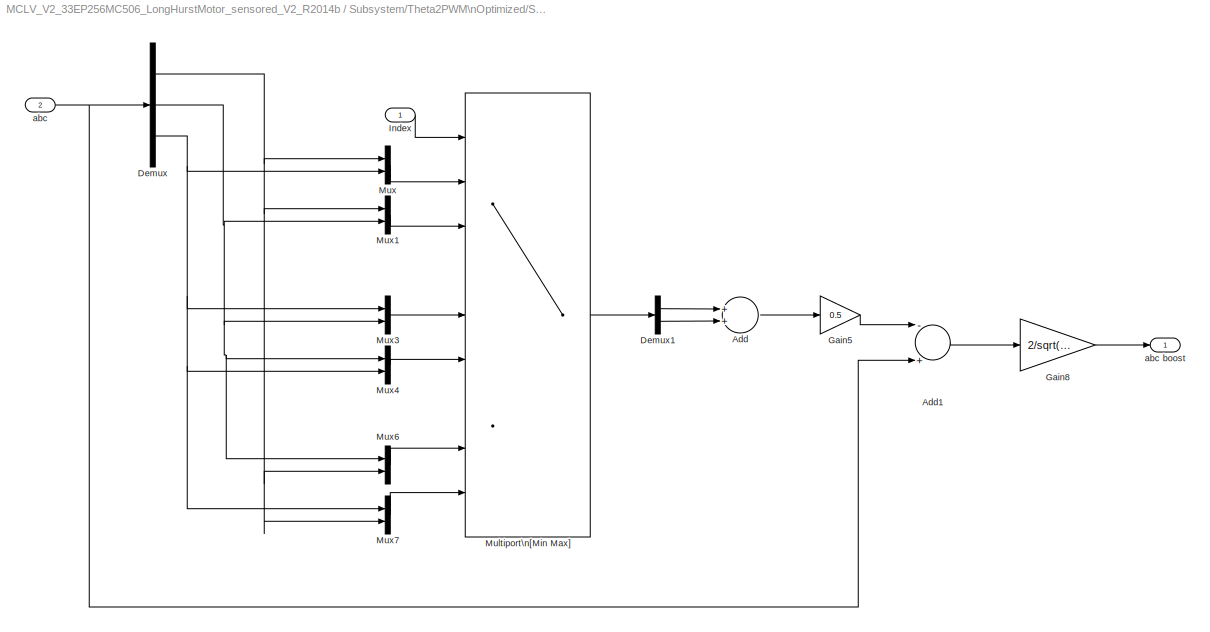
BLOCK [SubSystem] Subsystem/Theta2PWM\nOptimized/SVM Boost
  Ports = [2, 1]
  RequestExecContextInheritance = off
  SID = 1121
BLOCK [Sum] Subsystem/Theta2PWM\nOptimized/SVM Boost/Add
  AccumDataTypeStr = Inherit: Same as first input
  InputSameDT = off
  OutDataTypeStr = Inherit: Same as accumulator
  Ports = [2, 1]
  RndMeth = Simplest
  SID = 1124
  SaturateOnIntegerOverflow = off
BLOCK [Sum] Subsystem/Theta2PWM\nOptimized/SVM Boost/Add1
  AccumDataTypeStr = Inherit: Same as first input
  InputSameDT = off
  Inputs = -+
  OutDataTypeStr = Inherit: Same as accumulator
  Ports = [2, 1]
  RndMeth = Simplest
  SID = 1125
  SaturateOnIntegerOverflow = off
BLOCK [Demux] Subsystem/Theta2PWM\nOptimized/SVM Boost/Demux
  DisplayOption = bar
  Outputs = 3
  Ports = [1, 3]
  SID = 1126
BLOCK [Demux] Subsystem/Theta2PWM\nOptimized/SVM Boost/Demux1
  DisplayOption = bar
  Outputs = 2
  Ports = [1, 2]
  SID = 1127
BLOCK [Gain] Subsystem/Theta2PWM\nOptimized/SVM Boost/Gain5
  Gain = 0.5
  ParamDataTypeStr = Inherit: Inherit via internal rule
  RndMeth = Simplest
  SID = 1128
  SaturateOnIntegerOverflow = off
BLOCK [Gain] Subsystem/Theta2PWM\nOptimized/SVM Boost/Gain8
  Gain = 2/sqrt(3)
  ParamDataTypeStr = Inherit: Inherit via internal rule
  RndMeth = Simplest
  SID = 1129
  SaturateOnIntegerOverflow = off
BLOCK [Inport] Subsystem/Theta2PWM\nOptimized/SVM Boost/Index
  IconDisplay = Port number
  SID = 1122
BLOCK [MultiPortSwitch] Subsystem/Theta2PWM\nOptimized/SVM Boost/Multiport\n[Min Max]
  DataPortOrder = Zero-based contiguous
  DiagnosticForDefault = None
  InputSameDT = off
  Inputs = 8
  Ports = [9, 1]
  SID = 1130
  SaturateOnIntegerOverflow = off
  zeroidx = on
BLOCK [Mux] Subsystem/Theta2PWM\nOptimized/SVM Boost/Mux
  DisplayOption = bar
  Inputs = 2
  Ports = [2, 1]
  SID = 1131
BLOCK [Mux] Subsystem/Theta2PWM\nOptimized/SVM Boost/Mux1
  DisplayOption = bar
  Inputs = 2
  Ports = [2, 1]
  SID = 1132
BLOCK [Mux] Subsystem/Theta2PWM\nOptimized/SVM Boost/Mux3
  DisplayOption = bar
  Inputs = 2
  Ports = [2, 1]
  SID = 1133
BLOCK [Mux] Subsystem/Theta2PWM\nOptimized/SVM Boost/Mux4
  DisplayOption = bar
  Inputs = 2
  Ports = [2, 1]
  SID = 1134
BLOCK [Mux] Subsystem/Theta2PWM\nOptimized/SVM Boost/Mux6
  DisplayOption = bar
  Inputs = 2
  Ports = [2, 1]
  SID = 1135
BLOCK [Mux] Subsystem/Theta2PWM\nOptimized/SVM Boost/Mux7
  DisplayOption = bar
  Inputs = 2
  Ports = [2, 1]
  SID = 1136
BLOCK [Inport] Subsystem/Theta2PWM\nOptimized/SVM Boost/abc
  IconDisplay = Port number
  Port = 2
  SID = 1123
BLOCK [Outport] Subsystem/Theta2PWM\nOptimized/SVM Boost/abc boost
  IconDisplay = Port number
  SID = 1137
BLOCK [Product] Subsystem/Theta2PWM\nOptimized/Scaling\nMax gain is PWMmax//2
  InputSameDT = off
  Inputs = **
  OutDataTypeStr = int16
  Ports = [2, 1]
  RndMeth = Floor
  SID = 1138
  SaturateOnIntegerOverflow = off
BLOCK [SubSystem] Subsystem/Theta2PWM\nOptimized/Sine\nSimpler
  Commented = on
  Ports = [1, 2]
  RequestExecContextInheritance = off
  SID = 1139
BLOCK [Bias] Subsystem/Theta2PWM\nOptimized/Sine\nSimpler/Bias1
  Bias = 0.25
  SID = 1141
  SaturateOnIntegerOverflow = off
BLOCK [SubSystem] Subsystem/Theta2PWM\nOptimized/Sine\nSimpler/Look-Up\nTable (sin)
  Description = Replaced Block
  Ports = [1, 1]
  RequestExecContextInheritance = off
  SID = 1216
BLOCK [Ground] Subsystem/Theta2PWM\nOptimized/Sine\nSimpler/Look-Up\nTable (sin)/Ground1
  SID = 1218
BLOCK [Inport] Subsystem/Theta2PWM\nOptimized/Sine\nSimpler/Look-Up\nTable (sin)/In1
  IconDisplay = Port number
  SID = 1217
BLOCK [Outport] Subsystem/Theta2PWM\nOptimized/Sine\nSimpler/Look-Up\nTable (sin)/Out1
  IconDisplay = Port number
  SID = 1220
BLOCK [Terminator] Subsystem/Theta2PWM\nOptimized/Sine\nSimpler/Look-Up\nTable (sin)/Terminator1
  SID = 1219
BLOCK [SubSystem] Subsystem/Theta2PWM\nOptimized/Sine\nSimpler/Look-Up\nTable (sin)1
  Description = Replaced Block
  Ports = [1, 1]
  RequestExecContextInheritance = off
  SID = 1221
BLOCK [Ground] Subsystem/Theta2PWM\nOptimized/Sine\nSimpler/Look-Up\nTable (sin)1/Ground1
  SID = 1223
BLOCK [Inport] Subsystem/Theta2PWM\nOptimized/Sine\nSimpler/Look-Up\nTable (sin)1/In1
  IconDisplay = Port number
  SID = 1222
BLOCK [Outport] Subsystem/Theta2PWM\nOptimized/Sine\nSimpler/Look-Up\nTable (sin)1/Out1
  IconDisplay = Port number
  SID = 1225
BLOCK [Terminator] Subsystem/Theta2PWM\nOptimized/Sine\nSimpler/Look-Up\nTable (sin)1/Terminator1
  SID = 1224
BLOCK [Reference] Subsystem/Theta2PWM\nOptimized/Sine\nSimpler/Sine1  REF=simulink/Lookup\nTables/Sine
  Formula = sin(2*pi*u) and cos(2*pi*u)
  InternalRulePriority = Speed
  NumDataPoints = (2^5)+1
  OutputWordLength = 16
  Ports = [1, 2]
  SID = 1144
  SourceBlock = simulink/Lookup\nTables/Sine
  SourceType = Sine and Cosine
BLOCK [Inport] Subsystem/Theta2PWM\nOptimized/Sine\nSimpler/Theta
  IconDisplay = Port number
  SID = 1140
BLOCK [Outport] Subsystem/Theta2PWM\nOptimized/Sine\nSimpler/cos(2*pi*u)
  IconDisplay = Port number
  SID = 1145
BLOCK [Outport] Subsystem/Theta2PWM\nOptimized/Sine\nSimpler/sin(2*pi*u)
  IconDisplay = Port number
  Port = 2
  SID = 1146
BLOCK [Inport] Subsystem/Theta2PWM\nOptimized/Theta
  IconDisplay = Port number
  OutDataTypeStr = fixdt(0,16,16)
  SID = 1091
BLOCK [Trigonometry] Subsystem/Theta2PWM\nOptimized/Trigonometric\nFunction
  ApproximationMethod = CORDIC
  NumberOfIterations = 15
  Operator = sincos
  Ports = [1, 2]
  SID = 1150
BLOCK [SubSystem] Subsystem/Theta2PWM\nOptimized/inv Clark
  Ports = [1, 1]
  RequestExecContextInheritance = off
  SID = 1151
BLOCK [Product] Subsystem/Theta2PWM\nOptimized/inv Clark/Clarke1
  InputSameDT = off
  Multiplication = Matrix(*)
  Ports = [2, 1]
  RndMeth = Convergent
  SID = 1153
  SaturateOnIntegerOverflow = off
BLOCK [Constant] Subsystem/Theta2PWM\nOptimized/inv Clark/Constant Magnitude
  OutDataTypeStr = Inherit: Inherit via back propagation
  SID = 1154
  SampleTime = -1
  Value = [1 0 ; -1/2 sqrt(3)/2 ;-1/2 -sqrt(3)/2]'
BLOCK [Demux] Subsystem/Theta2PWM\nOptimized/inv Clark/Demux
  DisplayOption = bar
  Outputs = 2
  Ports = [1, 2]
  SID = 1155
BLOCK [Gain] Subsystem/Theta2PWM\nOptimized/inv Clark/Gain
  Gain = sqrt(3)/2
  ParamDataTypeStr = Inherit: Inherit via internal rule
  SID = 1156
  SaturateOnIntegerOverflow = off
BLOCK [Gain] Subsystem/Theta2PWM\nOptimized/inv Clark/Gain3
  Gain = -1/2
  ParamDataTypeStr = Inherit: Inherit via internal rule
  RndMeth = Simplest
  SID = 1157
  SaturateOnIntegerOverflow = off
BLOCK [Math] Subsystem/Theta2PWM\nOptimized/inv Clark/Math\nFunction
  Operator = transpose
  Ports = [1, 1]
  SID = 1158
BLOCK [Mux] Subsystem/Theta2PWM\nOptimized/inv Clark/Mux
  DisplayOption = bar
  Inputs = 3
  Ports = [3, 1]
  SID = 1159
BLOCK [Sum] Subsystem/Theta2PWM\nOptimized/inv Clark/Sum
  AccumDataTypeStr = Inherit: Same as first input
  InputSameDT = off
  Ports = [2, 1]
  RndMeth = Simplest
  SID = 1160
  SaturateOnIntegerOverflow = off
BLOCK [Sum] Subsystem/Theta2PWM\nOptimized/inv Clark/Sum1
  AccumDataTypeStr = Inherit: Same as first input
  InputSameDT = off
  Inputs = +-
  Ports = [2, 1]
  RndMeth = Simplest
  SID = 1161
  SaturateOnIntegerOverflow = off
BLOCK [Outport] Subsystem/Theta2PWM\nOptimized/inv Clark/abc
  IconDisplay = Port number
  SID = 1162
BLOCK [Inport] Subsystem/Theta2PWM\nOptimized/inv Clark/alpha beta
  IconDisplay = Port number
  SID = 1152
BLOCK [TriggerPort] Subsystem/Trigger
  PortDimensions = 1
  Ports = []
  SID = 1250
  StatesWhenEnabling = held
  TriggerType = function-call
BLOCK [Reference] TIMER Configuration  REF=MCHP_Blockset/Timers/TIMER Configuration
  DoNotSetupChk = off
  Info = Timer 2:  Resol: 14.28571429(ns)  -  Max value: 936.214(us)
  MCHP_MASTERLINK = MCLV_V2_33EP256MC506_LongHurstMotor_sensored_V2_R2014b/Microchip Master
  MCHP_TIMER_REQUEST = {TimerA}{TmrCfg}20:2:3:0:[1  2  3  4  5]:3500;
  MCHP_TIMER_RESULT = [2 3498.9999999999991 ]
  MCHP_USER_INTERRUPTS = {T2}{TimerA}{TimerA}{VectorName(T2Interrupt) Priority(-1) };
  Ports = []
  SID = 1241
  SourceBlock = MCHP_Blockset/Timers/TIMER Configuration
  SourceType = Timer Configuration
  TIMER_CustomName = pouet_p
  TIMER_Interrupt = off
  TIMER_Name = TimerA
  TIMER_Period = 50e-6
  TIMER_PeriodChk = off
  TIMER_Resolution = Dynamic Options
  TIMER_Resolution_TXT = Resol: 3.657(us)  -  MaxPer: 240(ms)
  TIMER_Ressource = Dynamic Options
  TIMER_Ressource_Custom = [1]
  TIMER_Ressource_TXT = No constraints [Prefered]
  TIMER_ShareChk = on
  TIMER_Use = Read only
BLOCK [Reference] Tasks State\nShow base rate Task \non pin D8 (PIM)  REF=MCHP_Blockset/Profiling/Tasks State
  MCHP_MASTERLINK = MCLV_V2_33EP256MC506_LongHurstMotor_sensored_V2_R2014b/Microchip Master
  MCHP_PORT = {Task D1 Running}{Task D1}15:1:D8;
  Ports = []
  SID = 341
  SourceBlock = MCHP_Blockset/Profiling/Tasks State
  SourceType = MCU Over-Load (Profile execution time)
  TasksPin = D8
BLOCK [Terminator] Terminator
  SID = 524
BLOCK [Terminator] Terminator1
  SID = 1270
BLOCK [Reference] Timer Info  REF=MCHP_Blockset/System Info/Timer Info
  MCHP_MASTERLINK = MCLV_V2_33EP256MC506_LongHurstMotor_sensored_V2_R2014b/Microchip Master
  Ports = []
  SID = 6
  SourceBlock = MCHP_Blockset/System Info/Timer Info
BLOCK [Reference] UART Configuration  REF=MCHP_Blockset/BUS UART/UART Configuration
  ALT_IO = on
  BAUD_Choice = Dynamic Options
  BAUD_Choice_IR = Dynamic Options
  BAUD_Choice_IR_InitSeq = Dynamic Options
  BAUD_Choice_IR_InitSeq_TXT = 0
  BAUD_Choice_IR_TXT = []
  BAUD_Choice_InitSeq = Dynamic Options
  BAUD_Choice_InitSeq_TXT = 110         [-0.00%]
  BAUD_Choice_TXT = 115200         [-0.06%]
  BAUD_Custom = 115200
  BAUD_Custom_InitSeq = 0
  DuplexMode = Full duplex (default)
  FlowControl = None
  INT_PRIORITY = 0
  IRDA = off
  InitSequence = 'Hello World'
  InitSequence_chkbox = off
  MCHP_COM_ExtPil = on
  MCHP_MASTERLINK = MCLV_V2_33EP256MC506_LongHurstMotor_sensored_V2_R2014b/Microchip Master
  MCHP_PORT = {UART2  Rx}{U2RX}3:0:P53;{UART2  Tx}{U2TX}3:1:P97;
  PIN_CTS = Dynamic Options
  PIN_CTS_TXT = A4 / P20 / Pin[33]
  PIN_RTS = Dynamic Options
  PIN_RTS_TXT = A4 / P20 / Pin[33]
  PIN_RX = Dynamic Options
  PIN_RXTX_Inv = off
  PIN_RX_Inv = off
  PIN_RX_TXT = C5 / P53 / Pin[37]
  PIN_TX = Dynamic Options
  PIN_TX_Inv = off
  PIN_TX_TXT = F1 / P97 / Pin[59]
  ParityBit = No parity (default)
  Ports = []
  RX_CIRCULAR_SIZE = 256
  RX_DMA_CHANNEL = 0
  RX_DMA_SIZE = 0
  RX_IMPLEMENTATION = Circular Buffer
  RX_IMPLEMENTATION_default = Circular Buffer
  RX_INT_PRIORITY = 5
  RX_INT_WHEN = is 3/4 fulll (contains 3 data characters)
  SID = 20
  SourceBlock = MCHP_Blockset/BUS UART/UART Configuration
  SourceType = Configuration for UART peripheral
  StopBit = 1 stop bit (default)
  TX_CIRCULAR_SIZE = 256
  TX_DMA_CHANNEL = 0   (Lowest Priority)
  TX_DMA_SIZE = 60
  TX_IMPLEMENTATION = Circular Buffer
  TX_IMPLEMENTATION_default = Circular Buffer
  TX_INTERRUPT_PROTECTION = Do not send on conflict (default)
  TX_INTERRUPT_PROTECTION_default = Do not send on conflict (default)
  TX_INT_PRIORITY = 5
  TX_INT_WHEN = is empty & last char is sent
  TX_INT_WHEN_default = is empty & last char is sent
  TX_TASK_PROTECTION = Delay tasks (default)
  UART_REF = 2
BLOCK [Reference] UART Tx-Matlab  REF=MCHP_Blockset/BUS UART/UART Tx-Matlab
  AllOrNothing = on
  CHANNELS = [1 2 3 4 ]
  Commented = on
  MCHP_COMPILED_INFO = CompiledSampleTime= [0.0010000000000000000208   0 ];CompiledInportDataTypes=[  4   4   4   4 ];CompiledInportDataWidth=[1  1  1  1];
  MCHP_MASTERLINK = MCLV_V2_33EP256MC506_LongHurstMotor_sensored_V2_R2014b/Microchip Master
  Ports = [4]
  SID = 21
  SampleTime = .001
  SourceBlock = MCHP_Blockset/BUS UART/UART Tx-Matlab
  SourceType = Higl Level UART protocol
  UART_REF = 2
BLOCK [Bias] conv to unsigned
  Bias = 32768
  SID = 1193
  SaturateOnIntegerOverflow = off
BLOCK [DataTypeConversion] int to uint1
  ConvertRealWorld = Stored Integer (SI)
  OutDataTypeStr = int16
  RndMeth = Floor
  SID = 1213
  SaturateOnIntegerOverflow = off
BLOCK [DataTypeConversion] int to uint2
  ConvertRealWorld = Stored Integer (SI)
  OutDataTypeStr = int16
  RndMeth = Floor
  SID = 1233
  SaturateOnIntegerOverflow = off
BLOCK [DataTypeConversion] int to uint3
  ConvertRealWorld = Stored Integer (SI)
  OutDataTypeStr = int16
  RndMeth = Floor
  SID = 1214
  SaturateOnIntegerOverflow = off
BLOCK [DataTypeConversion] int to uint7
  ConvertRealWorld = Stored Integer (SI)
  OutDataTypeStr = int16
  RndMeth = Floor
  SID = 518
  SaturateOnIntegerOverflow = off
BLOCK [Reference] picgui\nGraphical interface  REF=MCHP_Blockset/BUS UART/picgui\nGraphical interface
  Nothing = 0
  Ports = []
  SID = 529
  SourceBlock = MCHP_Blockset/BUS UART/picgui\nGraphical interface
BLOCK [Reference] send MCU load\n1000 is 100% load  REF=MCHP_Blockset/BUS UART/UART Tx-Matlab
  AllOrNothing = on
  CHANNELS = 5
  Commented = on
  MCHP_COMPILED_INFO = CompiledSampleTime= [0.0050000000000000001041   0 ];CompiledInportDataTypes=[  5 ];CompiledInportDataWidth=[1];
  MCHP_MASTERLINK = MCLV_V2_33EP256MC506_LongHurstMotor_sensored_V2_R2014b/Microchip Master
  Ports = [1]
  SID = 522
  SampleTime = -1
  SourceBlock = MCHP_Blockset/BUS UART/UART Tx-Matlab
  SourceType = Higl Level UART protocol
  UART_REF = 2
ANNOTATION (root): \n \n ADC: \n Block output is updated after each trig sequence thus: \n - AN0, AN1, AN2 block output updated at each step. \n - AN10 and AN13 updated alternatively each 2 steps. \n
ANNOTATION Subsystem/Theta2PWM\nOptimized/Sine\nSimpler: Gain is about 2us (70 MIPS)
ANNOTATION Subsystem/Theta2PWM\nOptimized/inv Clark: Transposed version is better optimized with DSP (optional)\nNo impact on no DSP version
ANNOTATION Subsystem/Theta2PWM\nOptimized/inv Clark: k = 2/3 : invariant Magnitude
LINE ADC:1 -> conv to unsigned:1
LINE ADC:2 -> Q1.15:1
LINE ADC:3 -> Selector1:1
LINE ADC:4 -> Selector:1
LINE ADC:5 -> Not used:1
LINE Button S2:1 -> Delay3:2
LINE Button S3:1 -> Terminator:1
LINE CPU load\nin [0 1000]:1 -> send MCU load\n1000 is 100% load:1
LINE Constant3:1 -> Delay3:1
LINE Counter\nFree-Running:1 -> Data Type Conversion:1
LINE Data Type Conversion:1 -> LED 1:1
LINE Delay3:1 -> Goto1:1
LINE Demux2:1 -> Rate Transition:1
LINE Demux2:2 -> Rate Transition1:1
LINE From1:1 -> Rate Transition4:1
LINE Gain1:1 -> Scale Ia Ib to (A):1
LINE Interrupt:1 -> Subsystem:trigger
LINE MCU Load\nD8 - TestPoint:1 -> CPU load\nin [0 1000]:1
LINE Mux1:1 -> Gain1:1
NET Q1.15:1 -> Rate Transition2:1, Rate Transition5:1, Scope:2
LINE Rate Transition1:1 -> int to uint1:1
LINE Rate Transition2:1 -> int to uint3:1
LINE Rate Transition3:1 -> int to uint2:1
LINE Rate Transition4:1 -> Subsystem:1
LINE Rate Transition5:1 -> Subsystem:2
LINE Rate Transition:1 -> int to uint7:1
NET Scale DC BUS  (V):1 -> Scope:1, Terminator1:1
LINE Scale Ia Ib to (A):1 -> Demux2:1
LINE Selector1:1 -> Mux1:2
LINE Selector:1 -> Mux1:1
LINE Subsystem/Bias:1 -> Subsystem/Switch\nStartup ramp Angle\nthen Estimated Angle or QEI:3
LINE Subsystem/Constant1:1 -> Subsystem/Test sensors\nonly:2
LINE Subsystem/Gain2:1 -> Subsystem/Test sensors\nonly:1
LINE Subsystem/Initial Angle\n:1 -> Subsystem/Switch\nStartup ramp Angle\nthen Estimated Angle or QEI:1
LINE Subsystem/MOTOR - Board\nSensor/Rate Transition4:1 -> Subsystem/MOTOR - Board\nSensor/encoder scaled:1
LINE Subsystem/MOTOR - Board\nSensor/Reset:1 -> Subsystem/MOTOR - Board\nSensor/Rate Transition4:1
LINE Subsystem/MOTOR - Board\nSensor/encoder scaled/Direct Lookup\nTable (n-D):1 -> Subsystem/MOTOR - Board\nSensor/encoder scaled/theta_enc_fract:1
LINE Subsystem/MOTOR - Board\nSensor/encoder scaled/Q0.4:1 -> Subsystem/MOTOR - Board\nSensor/encoder scaled/Rate Transition4:1
LINE Subsystem/MOTOR - Board\nSensor/encoder scaled/QEI:1 -> Subsystem/MOTOR - Board\nSensor/encoder scaled/Direct Lookup\nTable (n-D):1
LINE Subsystem/MOTOR - Board\nSensor/encoder scaled/Rate Transition4:1 -> Subsystem/MOTOR - Board\nSensor/encoder scaled/QEI:1
LINE Subsystem/MOTOR - Board\nSensor/encoder scaled/Rst:1 -> Subsystem/MOTOR - Board\nSensor/encoder scaled/Q0.4:1
LINE Subsystem/MOTOR - Board\nSensor/encoder scaled:1 -> Subsystem/MOTOR - Board\nSensor/Theta:1
NET Subsystem/MOTOR - Board\nSensor:1 -> Subsystem/Bias:1, Subsystem/Theta:1
LINE Subsystem/MOTOR\nCmd/Dead time\nCompensation:1 -> Subsystem/MOTOR\nCmd/int to uint:1
LINE Subsystem/MOTOR\nCmd/Demux:1 -> Subsystem/MOTOR\nCmd/PWM High Speed:1
LINE Subsystem/MOTOR\nCmd/Demux:2 -> Subsystem/MOTOR\nCmd/PWM High Speed:2
LINE Subsystem/MOTOR\nCmd/Demux:3 -> Subsystem/MOTOR\nCmd/PWM High Speed:3
LINE Subsystem/MOTOR\nCmd/PWM\n(abc):1 -> Subsystem/MOTOR\nCmd/Dead time\nCompensation:1
LINE Subsystem/MOTOR\nCmd/Saturation\nlow side turn \non errate workaround\n+ errata for Phase shift (times 2):1 -> Subsystem/MOTOR\nCmd/Demux:1
LINE Subsystem/MOTOR\nCmd/int to uint:1 -> Subsystem/MOTOR\nCmd/Saturation\nlow side turn \non errate workaround\n+ errata for Phase shift (times 2):1
LINE Subsystem/PWM duty cycle\nRealign QEI sensor:1 -> Subsystem/Switch\nStartup ramp Angle\nthen Estimated Angle or QEI1:1
LINE Subsystem/Pot:1 -> Subsystem/Saturation:1
NET Subsystem/Reset:1 -> Subsystem/MOTOR - Board\nSensor:1, Subsystem/Switch\nStartup ramp Angle\nthen Estimated Angle or QEI1:2, Subsystem/Switch\nStartup ramp Angle\nthen Estimated Angle or QEI:2
LINE Subsystem/Saturation:1 -> Subsystem/Switch\nStartup ramp Angle\nthen Estimated Angle or QEI1:3
LINE Subsystem/Switch\nStartup ramp Angle\nthen Estimated Angle or QEI1:1 -> Subsystem/Gain2:1
LINE Subsystem/Switch\nStartup ramp Angle\nthen Estimated Angle or QEI:1 -> Subsystem/Theta2PWM\nOptimized:1
LINE Subsystem/Test sensors\nonly:1 -> Subsystem/Theta2PWM\nOptimized:2
LINE Subsystem/Theta2PWM\nOptimized/50% average duty-cycle:1 -> Subsystem/Theta2PWM\nOptimized/PWM\nabc:1
LINE Subsystem/Theta2PWM\nOptimized/Calc\nIndex/Bitwise\nOperator1:1 -> Subsystem/Theta2PWM\nOptimized/Calc\nIndex/Data Type Conversion:1
LINE Subsystem/Theta2PWM\nOptimized/Calc\nIndex/Data Type Conversion:1 -> Subsystem/Theta2PWM\nOptimized/Calc\nIndex/Idx:1
NET Subsystem/Theta2PWM\nOptimized/Calc\nIndex/Demux1:1 -> Subsystem/Theta2PWM\nOptimized/Calc\nIndex/Relational\nOperator3:1, Subsystem/Theta2PWM\nOptimized/Calc\nIndex/Relational\nOperator4:1
NET Subsystem/Theta2PWM\nOptimized/Calc\nIndex/Demux1:2 -> Subsystem/Theta2PWM\nOptimized/Calc\nIndex/Relational\nOperator3:2, Subsystem/Theta2PWM\nOptimized/Calc\nIndex/Relational\nOperator5:1
NET Subsystem/Theta2PWM\nOptimized/Calc\nIndex/Demux1:3 -> Subsystem/Theta2PWM\nOptimized/Calc\nIndex/Relational\nOperator4:2, Subsystem/Theta2PWM\nOptimized/Calc\nIndex/Relational\nOperator5:2
LINE Subsystem/Theta2PWM\nOptimized/Calc\nIndex/Gain6:1 -> Subsystem/Theta2PWM\nOptimized/Calc\nIndex/Bitwise\nOperator1:1
LINE Subsystem/Theta2PWM\nOptimized/Calc\nIndex/Gain7:1 -> Subsystem/Theta2PWM\nOptimized/Calc\nIndex/Bitwise\nOperator1:2
LINE Subsystem/Theta2PWM\nOptimized/Calc\nIndex/In1:1 -> Subsystem/Theta2PWM\nOptimized/Calc\nIndex/Demux1:1
LINE Subsystem/Theta2PWM\nOptimized/Calc\nIndex/Relational\nOperator3:1 -> Subsystem/Theta2PWM\nOptimized/Calc\nIndex/Gain6:1
LINE Subsystem/Theta2PWM\nOptimized/Calc\nIndex/Relational\nOperator4:1 -> Subsystem/Theta2PWM\nOptimized/Calc\nIndex/Gain7:1
LINE Subsystem/Theta2PWM\nOptimized/Calc\nIndex/Relational\nOperator5:1 -> Subsystem/Theta2PWM\nOptimized/Calc\nIndex/Bitwise\nOperator1:3
LINE Subsystem/Theta2PWM\nOptimized/Calc\nIndex:1 -> Subsystem/Theta2PWM\nOptimized/SVM Boost:1
LINE Subsystem/Theta2PWM\nOptimized/Data Type Conversion:1 -> Subsystem/Theta2PWM\nOptimized/50% average duty-cycle:1
LINE Subsystem/Theta2PWM\nOptimized/Gain2:1 -> Subsystem/Theta2PWM\nOptimized/Trigonometric\nFunction:1
LINE Subsystem/Theta2PWM\nOptimized/Gain\n[0 PWMmax//2]:1 -> Subsystem/Theta2PWM\nOptimized/Scaling\nMax gain is PWMmax//2:2
LINE Subsystem/Theta2PWM\nOptimized/Mux24:1 -> Subsystem/Theta2PWM\nOptimized/inv Clark:1
LINE Subsystem/Theta2PWM\nOptimized/SVM Boost/Add1:1 -> Subsystem/Theta2PWM\nOptimized/SVM Boost/Gain8:1
LINE Subsystem/Theta2PWM\nOptimized/SVM Boost/Add:1 -> Subsystem/Theta2PWM\nOptimized/SVM Boost/Gain5:1
LINE Subsystem/Theta2PWM\nOptimized/SVM Boost/Demux1:1 -> Subsystem/Theta2PWM\nOptimized/SVM Boost/Add:1
LINE Subsystem/Theta2PWM\nOptimized/SVM Boost/Demux1:2 -> Subsystem/Theta2PWM\nOptimized/SVM Boost/Add:2
NET Subsystem/Theta2PWM\nOptimized/SVM Boost/Demux:1 -> Subsystem/Theta2PWM\nOptimized/SVM Boost/Mux1:1, Subsystem/Theta2PWM\nOptimized/SVM Boost/Mux6:2, Subsystem/Theta2PWM\nOptimized/SVM Boost/Mux7:2, Subsystem/Theta2PWM\nOptimized/SVM Boost/Mux:1
NET Subsystem/Theta2PWM\nOptimized/SVM Boost/Demux:2 -> Subsystem/Theta2PWM\nOptimized/SVM Boost/Mux1:2, Subsystem/Theta2PWM\nOptimized/SVM Boost/Mux3:2, Subsystem/Theta2PWM\nOptimized/SVM Boost/Mux4:1, Subsystem/Theta2PWM\nOptimized/SVM Boost/Mux6:1
NET Subsystem/Theta2PWM\nOptimized/SVM Boost/Demux:3 -> Subsystem/Theta2PWM\nOptimized/SVM Boost/Mux3:1, Subsystem/Theta2PWM\nOptimized/SVM Boost/Mux4:2, Subsystem/Theta2PWM\nOptimized/SVM Boost/Mux7:1, Subsystem/Theta2PWM\nOptimized/SVM Boost/Mux:2
LINE Subsystem/Theta2PWM\nOptimized/SVM Boost/Gain5:1 -> Subsystem/Theta2PWM\nOptimized/SVM Boost/Add1:1
LINE Subsystem/Theta2PWM\nOptimized/SVM Boost/Gain8:1 -> Subsystem/Theta2PWM\nOptimized/SVM Boost/abc boost:1
LINE Subsystem/Theta2PWM\nOptimized/SVM Boost/Index:1 -> Subsystem/Theta2PWM\nOptimized/SVM Boost/Multiport\n[Min Max]:1
LINE Subsystem/Theta2PWM\nOptimized/SVM Boost/Multiport\n[Min Max]:1 -> Subsystem/Theta2PWM\nOptimized/SVM Boost/Demux1:1
LINE Subsystem/Theta2PWM\nOptimized/SVM Boost/Mux1:1 -> Subsystem/Theta2PWM\nOptimized/SVM Boost/Multiport\n[Min Max]:3
LINE Subsystem/Theta2PWM\nOptimized/SVM Boost/Mux3:1 -> Subsystem/Theta2PWM\nOptimized/SVM Boost/Multiport\n[Min Max]:5
LINE Subsystem/Theta2PWM\nOptimized/SVM Boost/Mux4:1 -> Subsystem/Theta2PWM\nOptimized/SVM Boost/Multiport\n[Min Max]:6
LINE Subsystem/Theta2PWM\nOptimized/SVM Boost/Mux6:1 -> Subsystem/Theta2PWM\nOptimized/SVM Boost/Multiport\n[Min Max]:8
LINE Subsystem/Theta2PWM\nOptimized/SVM Boost/Mux7:1 -> Subsystem/Theta2PWM\nOptimized/SVM Boost/Multiport\n[Min Max]:9
LINE Subsystem/Theta2PWM\nOptimized/SVM Boost/Mux:1 -> Subsystem/Theta2PWM\nOptimized/SVM Boost/Multiport\n[Min Max]:2
NET Subsystem/Theta2PWM\nOptimized/SVM Boost/abc:1 -> Subsystem/Theta2PWM\nOptimized/SVM Boost/Add1:2, Subsystem/Theta2PWM\nOptimized/SVM Boost/Demux:1
LINE Subsystem/Theta2PWM\nOptimized/SVM Boost:1 -> Subsystem/Theta2PWM\nOptimized/Scaling\nMax gain is PWMmax//2:1
LINE Subsystem/Theta2PWM\nOptimized/Scaling\nMax gain is PWMmax//2:1 -> Subsystem/Theta2PWM\nOptimized/Data Type Conversion:1
LINE Subsystem/Theta2PWM\nOptimized/Sine\nSimpler/Bias1:1 -> Subsystem/Theta2PWM\nOptimized/Sine\nSimpler/Look-Up\nTable (sin)1:1
LINE Subsystem/Theta2PWM\nOptimized/Sine\nSimpler/Look-Up\nTable (sin)/Ground1:1 -> Subsystem/Theta2PWM\nOptimized/Sine\nSimpler/Look-Up\nTable (sin)/Out1:1
LINE Subsystem/Theta2PWM\nOptimized/Sine\nSimpler/Look-Up\nTable (sin)/In1:1 -> Subsystem/Theta2PWM\nOptimized/Sine\nSimpler/Look-Up\nTable (sin)/Terminator1:1
LINE Subsystem/Theta2PWM\nOptimized/Sine\nSimpler/Look-Up\nTable (sin)1/Ground1:1 -> Subsystem/Theta2PWM\nOptimized/Sine\nSimpler/Look-Up\nTable (sin)1/Out1:1
LINE Subsystem/Theta2PWM\nOptimized/Sine\nSimpler/Look-Up\nTable (sin)1/In1:1 -> Subsystem/Theta2PWM\nOptimized/Sine\nSimpler/Look-Up\nTable (sin)1/Terminator1:1
LINE Subsystem/Theta2PWM\nOptimized/Sine\nSimpler/Look-Up\nTable (sin)1:1 -> Subsystem/Theta2PWM\nOptimized/Sine\nSimpler/cos(2*pi*u):1
LINE Subsystem/Theta2PWM\nOptimized/Sine\nSimpler/Look-Up\nTable (sin):1 -> Subsystem/Theta2PWM\nOptimized/Sine\nSimpler/sin(2*pi*u):1
NET Subsystem/Theta2PWM\nOptimized/Sine\nSimpler/Theta:1 -> Subsystem/Theta2PWM\nOptimized/Sine\nSimpler/Bias1:1, Subsystem/Theta2PWM\nOptimized/Sine\nSimpler/Look-Up\nTable (sin):1, Subsystem/Theta2PWM\nOptimized/Sine\nSimpler/Sine1:1
LINE Subsystem/Theta2PWM\nOptimized/Theta:1 -> Subsystem/Theta2PWM\nOptimized/Gain2:1
LINE Subsystem/Theta2PWM\nOptimized/Trigonometric\nFunction:1 -> Subsystem/Theta2PWM\nOptimized/Mux24:2
LINE Subsystem/Theta2PWM\nOptimized/Trigonometric\nFunction:2 -> Subsystem/Theta2PWM\nOptimized/Mux24:1
LINE Subsystem/Theta2PWM\nOptimized/inv Clark/Constant Magnitude:1 -> Subsystem/Theta2PWM\nOptimized/inv Clark/Clarke1:2
NET Subsystem/Theta2PWM\nOptimized/inv Clark/Demux:1 -> Subsystem/Theta2PWM\nOptimized/inv Clark/Gain3:1, Subsystem/Theta2PWM\nOptimized/inv Clark/Mux:1
LINE Subsystem/Theta2PWM\nOptimized/inv Clark/Demux:2 -> Subsystem/Theta2PWM\nOptimized/inv Clark/Gain:1
NET Subsystem/Theta2PWM\nOptimized/inv Clark/Gain3:1 -> Subsystem/Theta2PWM\nOptimized/inv Clark/Sum1:1, Subsystem/Theta2PWM\nOptimized/inv Clark/Sum:2
NET Subsystem/Theta2PWM\nOptimized/inv Clark/Gain:1 -> Subsystem/Theta2PWM\nOptimized/inv Clark/Sum1:2, Subsystem/Theta2PWM\nOptimized/inv Clark/Sum:1
LINE Subsystem/Theta2PWM\nOptimized/inv Clark/Math\nFunction:1 -> Subsystem/Theta2PWM\nOptimized/inv Clark/Clarke1:1
LINE Subsystem/Theta2PWM\nOptimized/inv Clark/Mux:1 -> Subsystem/Theta2PWM\nOptimized/inv Clark/abc:1
LINE Subsystem/Theta2PWM\nOptimized/inv Clark/Sum1:1 -> Subsystem/Theta2PWM\nOptimized/inv Clark/Mux:3
LINE Subsystem/Theta2PWM\nOptimized/inv Clark/Sum:1 -> Subsystem/Theta2PWM\nOptimized/inv Clark/Mux:2
NET Subsystem/Theta2PWM\nOptimized/inv Clark/alpha beta:1 -> Subsystem/Theta2PWM\nOptimized/inv Clark/Demux:1, Subsystem/Theta2PWM\nOptimized/inv Clark/Math\nFunction:1
NET Subsystem/Theta2PWM\nOptimized/inv Clark:1 -> Subsystem/Theta2PWM\nOptimized/Calc\nIndex:1, Subsystem/Theta2PWM\nOptimized/SVM Boost:2
LINE Subsystem/Theta2PWM\nOptimized:1 -> Subsystem/MOTOR\nCmd:1
LINE Subsystem:1 -> Rate Transition3:1
LINE conv to unsigned:1 -> Scale DC BUS  (V):1
LINE int to uint1:1 -> UART Tx-Matlab:2
LINE int to uint2:1 -> UART Tx-Matlab:4
LINE int to uint3:1 -> UART Tx-Matlab:3
LINE int to uint7:1 -> UART Tx-Matlab:1
note: NET lines group one-source signal fan-out (src -> all destinations, sorted); 1:1 wires keep LINE
note: 1 file-system path scrubbed to <path> (not preserved elsewhere — flat text is the only slx artifact)
